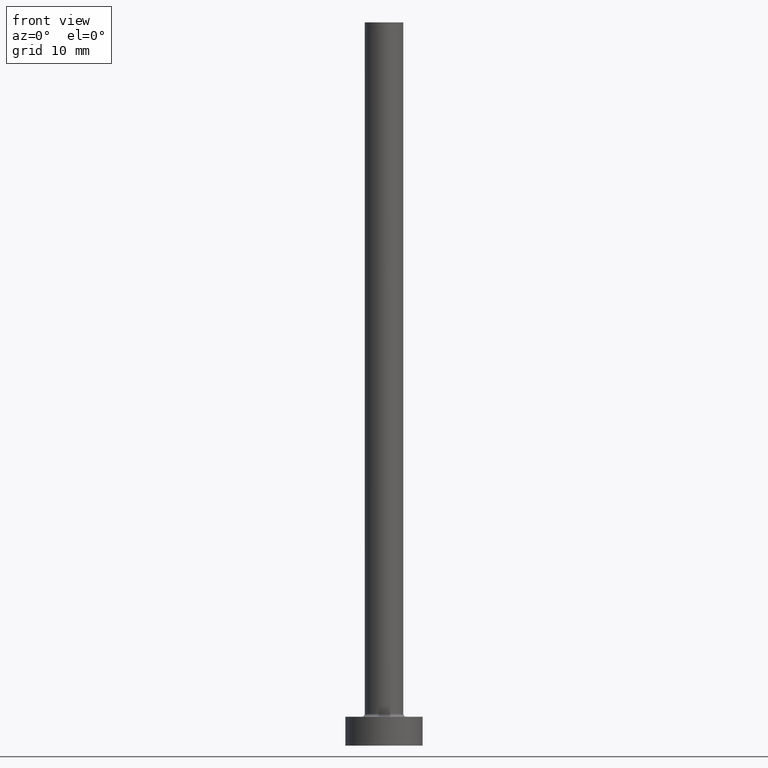
[diagram: clean part render]
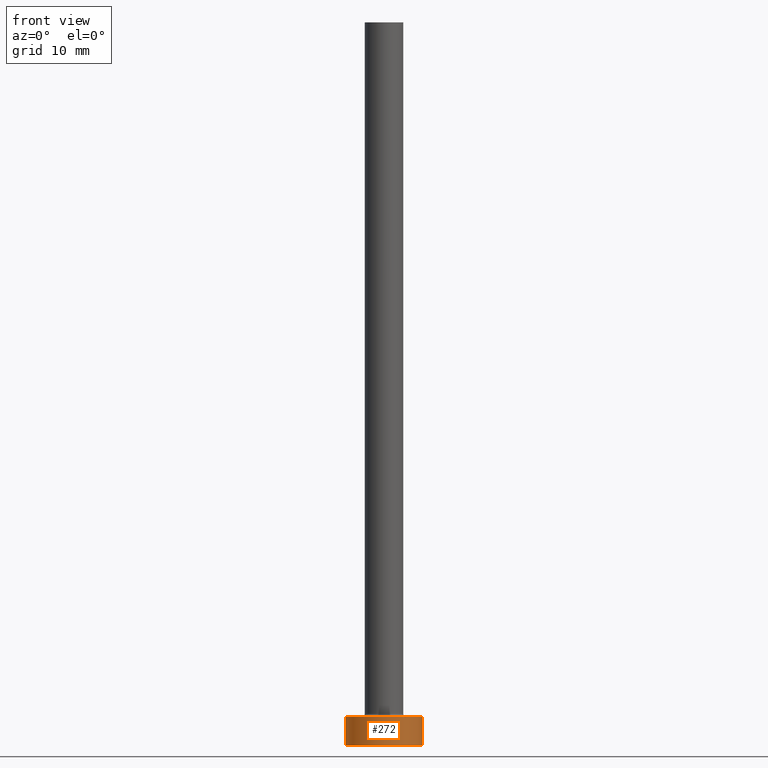
[diagram: same view with one face highlighted and labeled with its STEP entity id]
A machine part, front view. The second image highlights one B-rep face of the part: STEP entity #272.
In plain terms, the highlighted cylindrical surface (partial cylindrical patch) has radius 4 mm, axis along (-0, -0, -1).
Its self-contained STEP definition (entity closure, byte-faithful):
#6 = CARTESIAN_POINT ( 'NONE',  ( 4.000000000000000000, 4.898587196589412829E-16, 0.000000000000000000 ) ) ;
#8 = VERTEX_POINT ( 'NONE', #453 ) ;
#30 = DIRECTION ( 'NONE',  ( -1.000000000000000000, 0.000000000000000000, 0.000000000000000000 ) ) ;
#36 = CARTESIAN_POINT ( 'NONE',  ( 4.000000000000000000, 4.898587196589412829E-16, 3.000000000000000000 ) ) ;
#42 = EDGE_LOOP ( 'NONE', ( #360, #431, #225, #84 ) ) ;
#43 = VECTOR ( 'NONE', #144, 1000.000000000000000 ) ;
#74 = CARTESIAN_POINT ( 'NONE',  ( -4.000000000000000000, 0.000000000000000000, 0.000000000000000000 ) ) ;
#79 = EDGE_CURVE ( 'NONE', #231, #424, #441, .T. ) ;
#80 = DIRECTION ( 'NONE',  ( 0.000000000000000000, 0.000000000000000000, 1.000000000000000000 ) ) ;
#84 = ORIENTED_EDGE ( 'NONE', *, *, #79, .T. ) ;
#105 = CARTESIAN_POINT ( 'NONE',  ( 4.000000000000000000, 4.898587196589412829E-16, 3.000000000000000000 ) ) ;
#106 = CARTESIAN_POINT ( 'NONE',  ( 0.000000000000000000, 0.000000000000000000, 3.000000000000000000 ) ) ;
#117 = AXIS2_PLACEMENT_3D ( 'NONE', #450, #133, #205 ) ;
#133 = DIRECTION ( 'NONE',  ( 0.000000000000000000, 0.000000000000000000, 1.000000000000000000 ) ) ;
#141 = AXIS2_PLACEMENT_3D ( 'NONE', #196, #80, #290 ) ;
#144 = DIRECTION ( 'NONE',  ( -0.000000000000000000, -0.000000000000000000, -1.000000000000000000 ) ) ;
#175 = LINE ( 'NONE', #36, #43 ) ;
#196 = CARTESIAN_POINT ( 'NONE',  ( 0.000000000000000000, 0.000000000000000000, 3.000000000000000000 ) ) ;
#205 = DIRECTION ( 'NONE',  ( 1.000000000000000000, 0.000000000000000000, 0.000000000000000000 ) ) ;
#214 = DIRECTION ( 'NONE',  ( -0.000000000000000000, -0.000000000000000000, -1.000000000000000000 ) ) ;
#225 = ORIENTED_EDGE ( 'NONE', *, *, #392, .T. ) ;
#231 = VERTEX_POINT ( 'NONE', #74 ) ;
#272 = ADVANCED_FACE ( 'NONE', ( #386 ), #317, .T. ) ;
#278 = EDGE_CURVE ( 'NONE', #326, #424, #175, .T. ) ;
#287 = AXIS2_PLACEMENT_3D ( 'NONE', #106, #214, #30 ) ;
#290 = DIRECTION ( 'NONE',  ( 1.000000000000000000, 0.000000000000000000, 0.000000000000000000 ) ) ;
#295 = CARTESIAN_POINT ( 'NONE',  ( -4.000000000000000000, 0.000000000000000000, 3.000000000000000000 ) ) ;
#317 = CYLINDRICAL_SURFACE ( 'NONE', #287, 4.000000000000000000 ) ;
#326 = VERTEX_POINT ( 'NONE', #105 ) ;
#327 = LINE ( 'NONE', #295, #370 ) ;
#360 = ORIENTED_EDGE ( 'NONE', *, *, #278, .F. ) ;
#370 = VECTOR ( 'NONE', #437, 1000.000000000000000 ) ;
#386 = FACE_OUTER_BOUND ( 'NONE', #42, .T. ) ;
#392 = EDGE_CURVE ( 'NONE', #8, #231, #327, .T. ) ;
#395 = EDGE_CURVE ( 'NONE', #8, #326, #413, .T. ) ;
#413 = CIRCLE ( 'NONE', #141, 4.000000000000000000 ) ;
#424 = VERTEX_POINT ( 'NONE', #6 ) ;
#431 = ORIENTED_EDGE ( 'NONE', *, *, #395, .F. ) ;
#437 = DIRECTION ( 'NONE',  ( -0.000000000000000000, -0.000000000000000000, -1.000000000000000000 ) ) ;
#441 = CIRCLE ( 'NONE', #117, 4.000000000000000000 ) ;
#450 = CARTESIAN_POINT ( 'NONE',  ( 0.000000000000000000, 0.000000000000000000, 0.000000000000000000 ) ) ;
#453 = CARTESIAN_POINT ( 'NONE',  ( -4.000000000000000000, 0.000000000000000000, 3.000000000000000000 ) ) ;